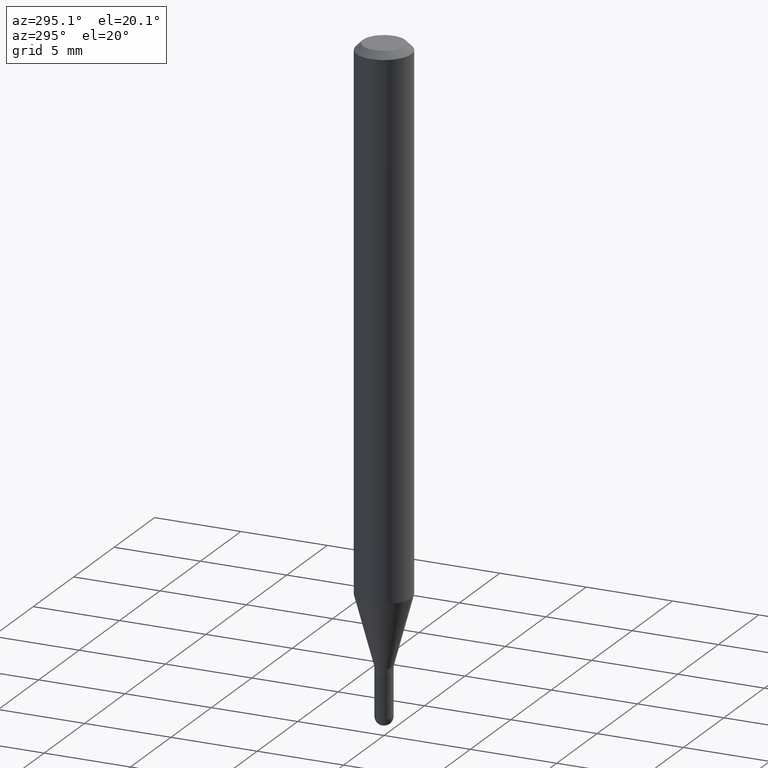
[diagram: clean part render]
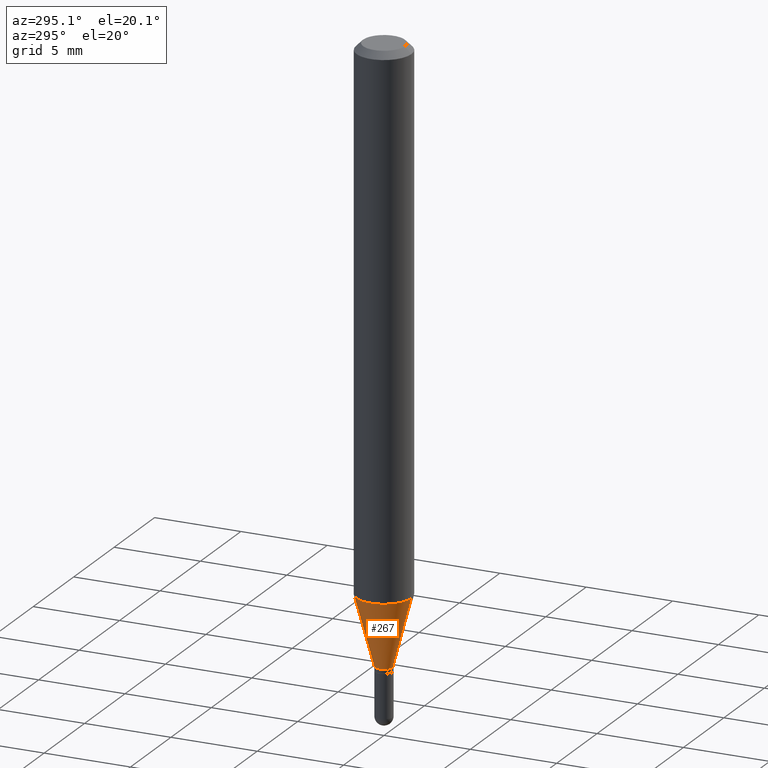
[diagram: same view with one face highlighted and labeled with its STEP entity id]
A machine part, auxiliary view. The second image highlights one B-rep face of the part: STEP entity #267.
In plain terms, the highlighted conical surface has half-angle 15 deg.
Its self-contained STEP definition (entity closure, byte-faithful):
#16 = AXIS2_PLACEMENT_3D ( 'NONE', #507, #301, #503 ) ;
#19 = ORIENTED_EDGE ( 'NONE', *, *, #149, .T. ) ;
#29 = CARTESIAN_POINT ( 'NONE',  ( 4.440892098500920012E-16, 0.06249999999999575340, -1.211387840678323391 ) ) ;
#45 = ORIENTED_EDGE ( 'NONE', *, *, #446, .T. ) ;
#65 = FACE_OUTER_BOUND ( 'NONE', #464, .T. ) ;
#75 = CARTESIAN_POINT ( 'NONE',  ( 3.350309268270858250E-29, -4.783305083809692626E-15, -1.369999999999999885 ) ) ;
#79 = DIRECTION ( 'NONE',  ( -1.807323732225332900E-15, -0.2588190451025185745, 0.9659258262890689783 ) ) ;
#86 = CARTESIAN_POINT ( 'NONE',  ( 2.930988785010726484E-16, 0.01999999999999513972, -1.369999999999999885 ) ) ;
#100 = EDGE_CURVE ( 'NONE', #366, #138, #244, .T. ) ;
#138 = VERTEX_POINT ( 'NONE', #156 ) ;
#149 = EDGE_CURVE ( 'NONE', #212, #292, #282, .T. ) ;
#151 = CARTESIAN_POINT ( 'NONE',  ( 1.421085471520529751E-16, 0.01999999999999513972, -1.369999999999999885 ) ) ;
#152 = CONICAL_SURFACE ( 'NONE', #16, 0.01999999999999992409, 0.2617993877991506846 ) ;
#156 = CARTESIAN_POINT ( 'NONE',  ( -4.364351673553621364E-16, -0.06250000000000424660, -1.211387840678322725 ) ) ;
#157 = CARTESIAN_POINT ( 'NONE',  ( -1.396592535536912702E-16, -0.02000000000000470846, -1.369999999999999885 ) ) ;
#185 = DIRECTION ( 'NONE',  ( -2.445481217715955060E-29, 3.491463564824593118E-15, 1.000000000000000000 ) ) ;
#186 = LINE ( 'NONE', #151, #218 ) ;
#198 = LINE ( 'NONE', #157, #290 ) ;
#212 = VERTEX_POINT ( 'NONE', #86 ) ;
#218 = VECTOR ( 'NONE', #237, 39.37007874015748143 ) ;
#223 = CARTESIAN_POINT ( 'NONE',  ( 2.962426211748327384E-29, -4.229516508599904405E-15, -1.211387840678323169 ) ) ;
#237 = DIRECTION ( 'NONE',  ( 1.839019923739603076E-15, 0.2588190451025253469, 0.9659258262890670910 ) ) ;
#244 = CIRCLE ( 'NONE', #424, 0.06250000000000000000 ) ;
#247 = AXIS2_PLACEMENT_3D ( 'NONE', #75, #185, #343 ) ;
#267 = ADVANCED_FACE ( 'NONE', ( #65 ), #152, .T. ) ;
#282 = CIRCLE ( 'NONE', #247, 0.01999999999999992409 ) ;
#290 = VECTOR ( 'NONE', #79, 39.37007874015748143 ) ;
#292 = VERTEX_POINT ( 'NONE', #296 ) ;
#296 = CARTESIAN_POINT ( 'NONE',  ( -1.396592535536912702E-16, -0.02000000000000470846, -1.369999999999999885 ) ) ;
#301 = DIRECTION ( 'NONE',  ( -2.445481217715955060E-29, 3.491463564824593118E-15, 1.000000000000000000 ) ) ;
#343 = DIRECTION ( 'NONE',  ( -6.982962677686265133E-15, -1.000000000000000000, 0.000000000000000000 ) ) ;
#366 = VERTEX_POINT ( 'NONE', #29 ) ;
#370 = EDGE_CURVE ( 'NONE', #212, #366, #186, .T. ) ;
#422 = DIRECTION ( 'NONE',  ( -2.445481217715955060E-29, 3.491463564824593118E-15, 1.000000000000000000 ) ) ;
#424 = AXIS2_PLACEMENT_3D ( 'NONE', #223, #422, #509 ) ;
#446 = EDGE_CURVE ( 'NONE', #292, #138, #198, .T. ) ;
#464 = EDGE_LOOP ( 'NONE', ( #490, #19, #45, #502 ) ) ;
#490 = ORIENTED_EDGE ( 'NONE', *, *, #370, .F. ) ;
#502 = ORIENTED_EDGE ( 'NONE', *, *, #100, .F. ) ;
#503 = DIRECTION ( 'NONE',  ( -6.982962677686265133E-15, -1.000000000000000000, 0.000000000000000000 ) ) ;
#507 = CARTESIAN_POINT ( 'NONE',  ( 3.350309268270858250E-29, -4.783305083809692626E-15, -1.369999999999999885 ) ) ;
#509 = DIRECTION ( 'NONE',  ( -6.982962677686265922E-15, -1.000000000000000000, 4.370956789862821150E-15 ) ) ;